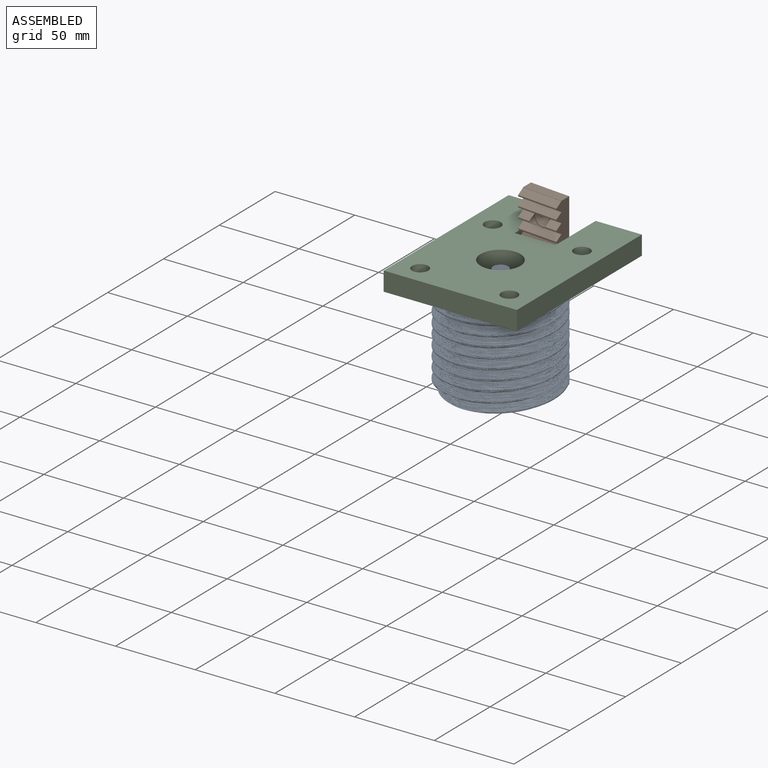
[diagram: assembled view]
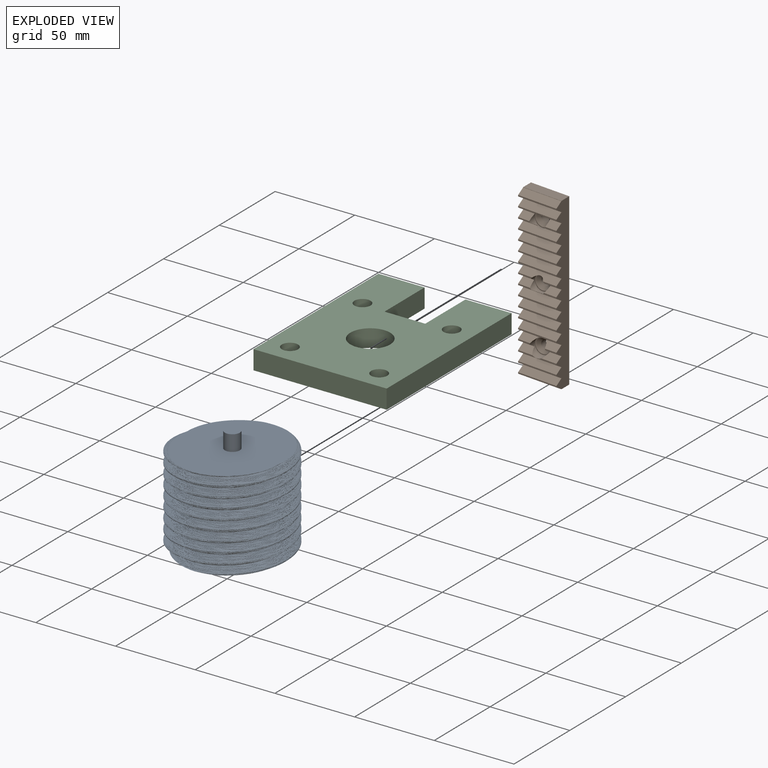
[diagram: exploded view]
GUIDED TOUR — FREECAD ASSEMBLY "block"

This assembly has 3 components, labeled P0..P2 below (a component is one placed body or linked part; the same part can appear more than once), held together by 0 modeled joints plus 2 derived contact edges. A joint is a constraint between two components; its type names the relative motion it leaves free:
  CONTACT — a derived adjacency edge — the two components touch in the source model (clearance under 2% of the assembly's diagonal); it is measured from the geometry, not a modeled constraint.
Axis/direction vectors are unit vectors and 'through' points are millimeter coordinates, both in the assembly's world frame.

MATES
  1. CONTACT "contact_0_1": P0 <-> P1, contact direction (0.000, 1.000, 0.000) through (-3.93, 79.12, 15.52) mm (derived from contact, not a modeled constraint)
  2. CONTACT "contact_1_2": P1 <-> P2, contact direction (0.000, -1.000, 0.000) through (-12.50, 77.12, 70.33) mm (derived from contact, not a modeled constraint)

ASSEMBLY ORDER
  1. P1 — the base component [order verified]
  2. P2 [order verified]
  3. P0 [order verified]
Order-tag legend:
  [order verified] — this step's position reverses a verified removal order: the component was checked to insert without passing through the ones already placed.

Of the 3 components, 3 carry a construction recipe — the FreeCAD feature program (sketches with constraints, then the solid features that consume them) that regenerates the part from scratch, quoted from this document or from the linked companion document it references; the rest are supplied as boundary geometry only. The tour below walks the components in assembly order: each is shown spotlighted twice — in the assembled view, then in the exploded view, where a leader line traces a displaced component back to its assembled socket (components that stay in place when exploded have no leader line; saturated green if recipe-attached, orange if geometry-only; every other component desaturated gray) — followed by its recipe or geometry summary and the mates that hold it.
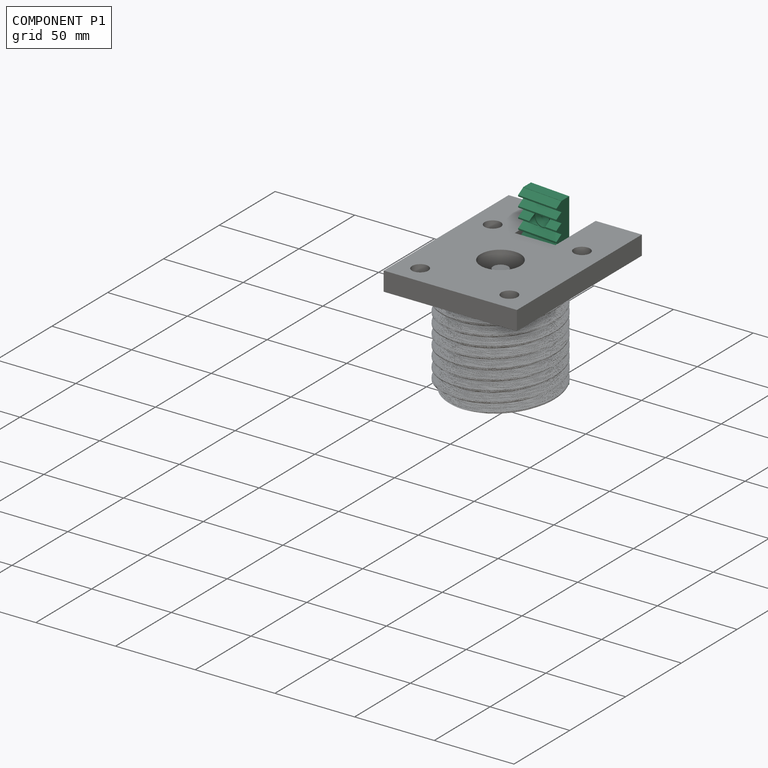
[diagram: component P1 — assembled]
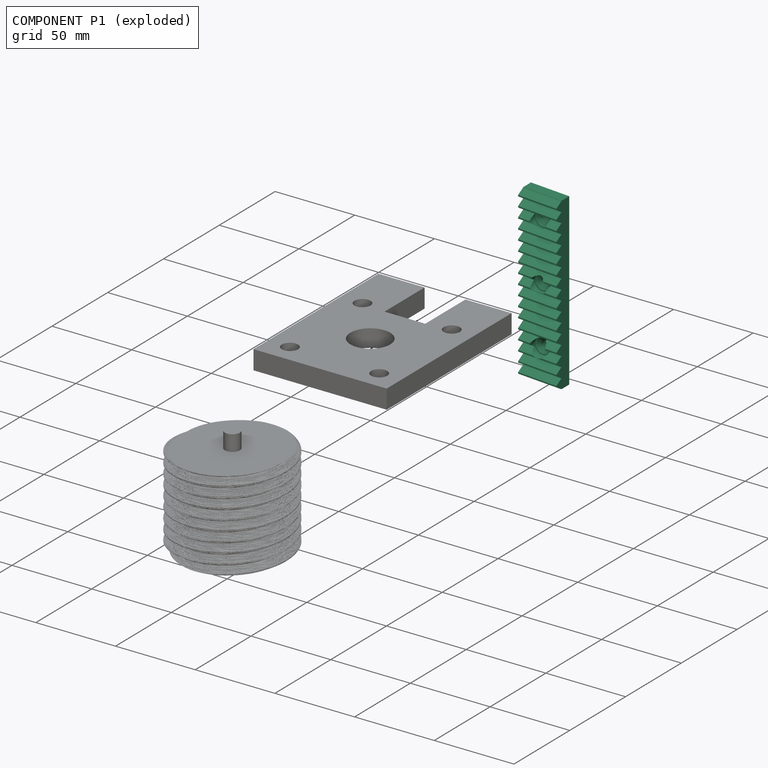
[diagram: component P1 — exploded]
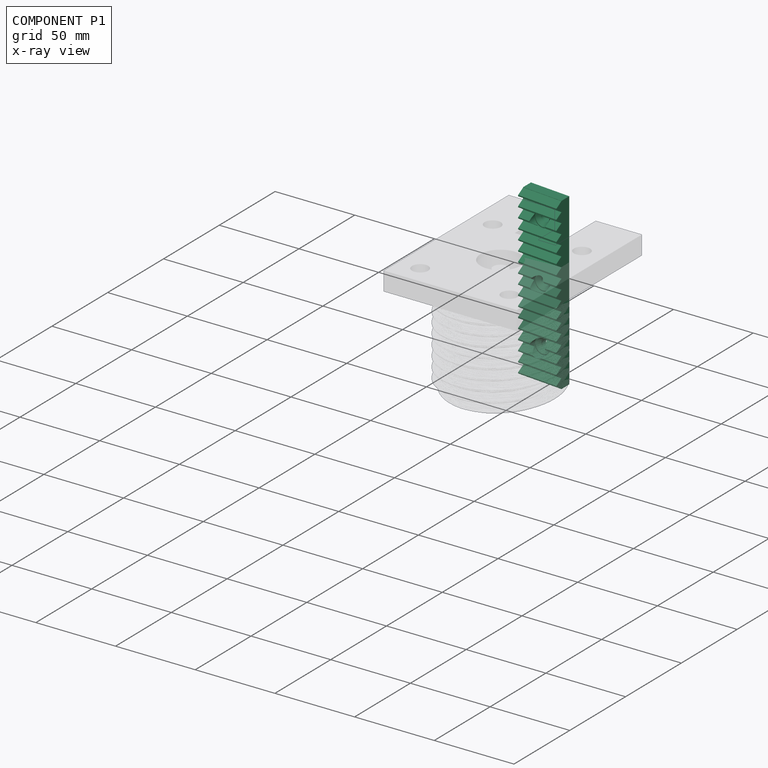
[diagram: component P1 — x-ray view]
COMPONENT P1 — same part as P0; its construction recipe is shown at P0.
Held by: resting contact with P0 (derived edge); resting contact with P2 (derived edge).
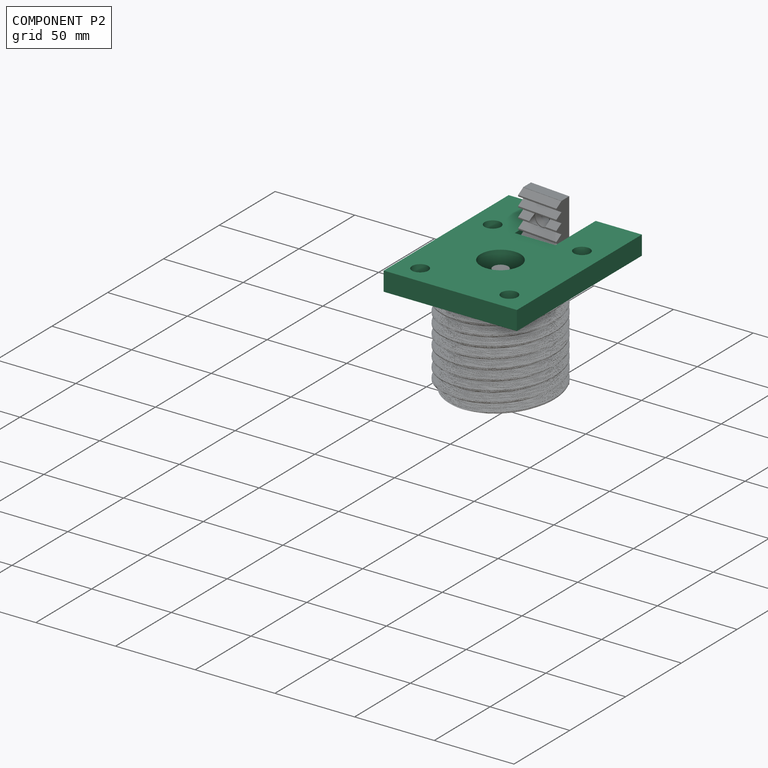
[diagram: component P2 — assembled]
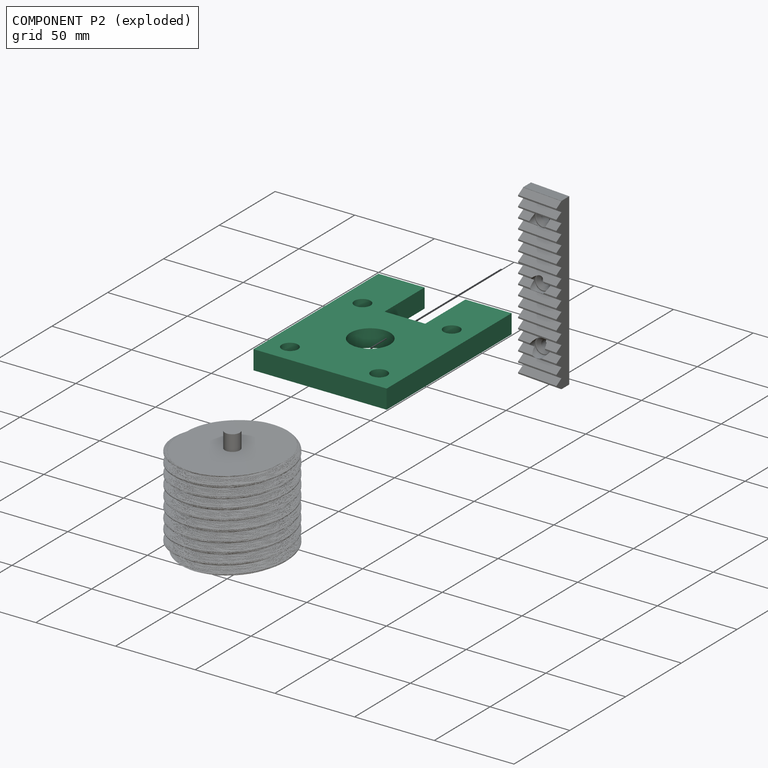
[diagram: component P2 — exploded]
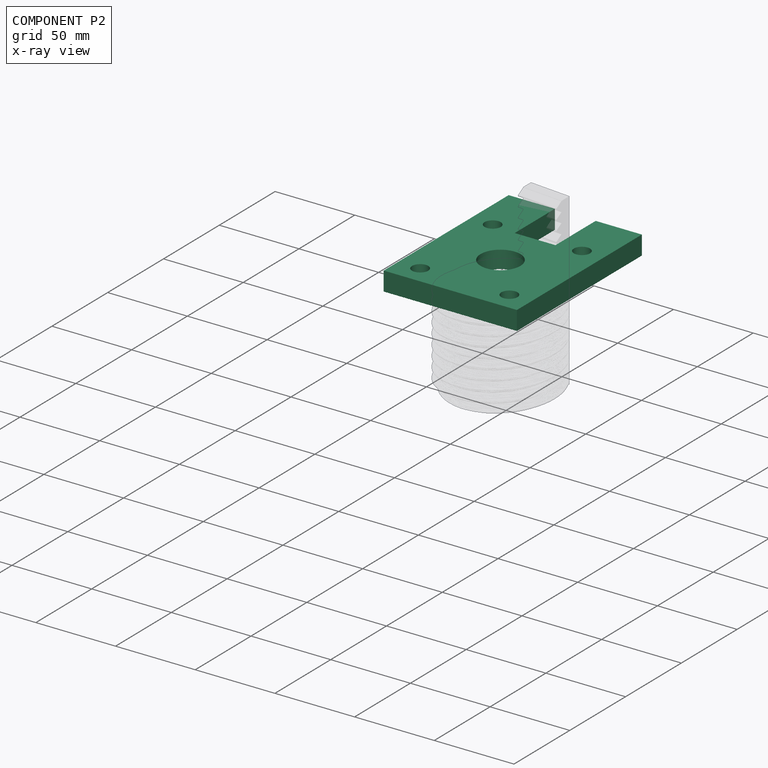
[diagram: component P2 — x-ray view]
COMPONENT P2 — same part as P0; its construction recipe is shown at P0.
Held by: resting contact with P1 (derived edge).
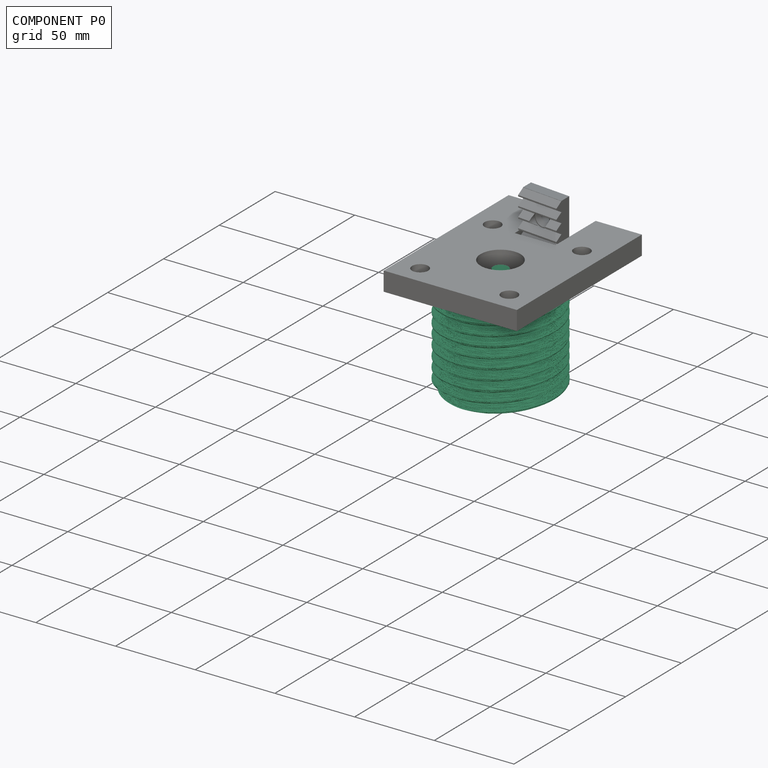
[diagram: component P0 — assembled]
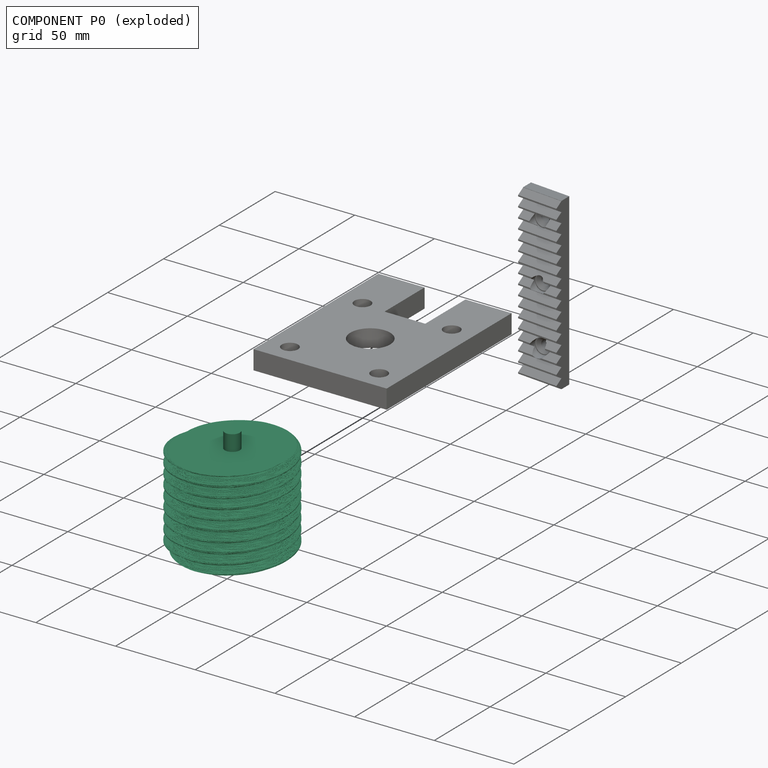
[diagram: component P0 — exploded]
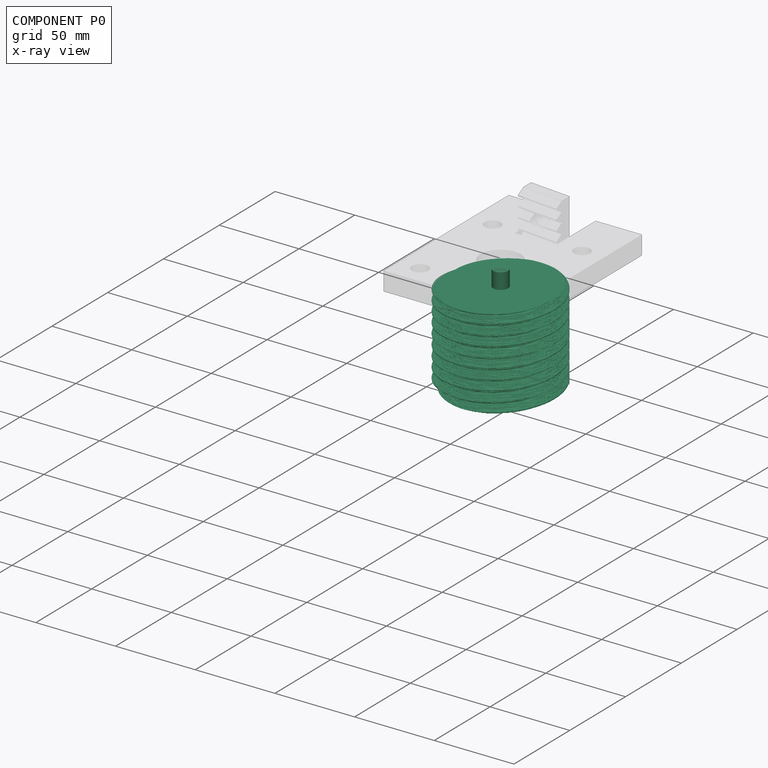
[diagram: component P0 — x-ray view]
COMPONENT P0 — recipe-attached ("worm", modeled in this document).
Held by: resting contact with P1 (derived edge).
Construction recipe (the document's own serialized feature program — sketch geometry with constraints, then the solid features built on it; lengths are millimeters unless a unit is written):

FEATURE [Sketcher::SketchObject] Sketch
  FullyConstrained = true
  MapMode = 5
  Support = -> [XY_Plane]
  sketch-geometry (21):
    g0: LineSegment StartX=0 StartY=0 StartZ=0 EndX=-41.9 EndY=0 EndZ=0
    g1: LineSegment StartX=-41.9 StartY=0 StartZ=0 EndX=-41.9 EndY=112 EndZ=0
    g2: LineSegment StartX=-10.8964 StartY=105.375 StartZ=0 EndX=-10.8964 EndY=106.7 EndZ=0
    g3: LineSegment StartX=-10.5214 StartY=107.075 StartZ=0 EndX=-6.89645 EndY=107.075 EndZ=0
    g4: LineSegment StartX=-5.39645 StartY=105.575 StartZ=0 EndX=-5.39645 EndY=99.375 EndZ=0
    g5: LineSegment StartX=-6.89645 StartY=97.875 StartZ=0 EndX=-10.5214 EndY=97.875 EndZ=0
    g6: LineSegment StartX=-10.8964 StartY=98.25 StartZ=0 EndX=-10.8964 EndY=99.575 EndZ=0
    g7: LineSegment StartX=-11.3232 StartY=99.7518 StartZ=0 EndX=-12.9 EndY=98.175 EndZ=0
    g8: ArcOfCircle CenterX=-10.5214 CenterY=106.7 CenterZ=0 NormalX=0 NormalY=0 NormalZ=1 AngleXU=0 Radius=0.375 StartAngle=1.5708 EndAngle=3.14159
    g9: ArcOfCircle CenterX=-6.89645 CenterY=105.575 CenterZ=0 NormalX=0 NormalY=0 NormalZ=1 AngleXU=0 Radius=1.5 StartAngle=4.6e-15 EndAngle=1.5708
    g10: ArcOfCircle CenterX=-6.89645 CenterY=99.375 CenterZ=0 NormalX=0 NormalY=0 NormalZ=1 AngleXU=0 Radius=1.5 StartAngle=4.71239 EndAngle=6.28319
    g11: ArcOfCircle CenterX=-10.5214 CenterY=98.25 CenterZ=0 NormalX=0 NormalY=0 NormalZ=1 AngleXU=0 Radius=0.375 StartAngle=3.14159 EndAngle=4.71239
    g12: LineSegment StartX=-41.9 StartY=112 StartZ=0 EndX=-12.9 EndY=112 EndZ=0
    g13: LineSegment StartX=-12.9 StartY=112 StartZ=0 EndX=-12.9 EndY=106.775 EndZ=0
    g14: LineSegment StartX=-12.9 StartY=106.775 StartZ=0 EndX=-11.3232 EndY=105.198 EndZ=0
    g15: LineSegment StartX=-12.9 StartY=98.175 StartZ=0 EndX=-12.9 EndY=92.95 EndZ=0
    g16: LineSegment StartX=-12.9 StartY=92.95 StartZ=0 EndX=-12.9 EndY=74.95 EndZ=0
    g17: ArcOfCircle CenterX=-11.1464 CenterY=105.375 CenterZ=0 NormalX=0 NormalY=0 NormalZ=1 AngleXU=0 Radius=0.25 StartAngle=3.92699 EndAngle=6.28319
    g18: ArcOfCircle CenterX=-11.1464 CenterY=99.575 CenterZ=0 NormalX=0 NormalY=0 NormalZ=1 AngleXU=0 Radius=0.25 StartAngle=1.11e-14 EndAngle=2.35619
    g19: LineSegment StartX=-12.9 StartY=74.95 StartZ=0 EndX=0 EndY=74.95 EndZ=0
    g20: LineSegment StartX=0 StartY=0 StartZ=0 EndX=0 EndY=74.95 EndZ=0
  constraints (56):
    c: Coincident(g0,g-1)
    c: PointOnObject(g0,g-1)
    c: Coincident(g1,g0)
    c: Vertical(g1)
    c: Vertical(g2)
    c: Horizontal(g3)
    c: Vertical(g4)
    c: Horizontal(g5)
    c: Vertical(g6)
    c: Tangent(g2,g8) = 1.5708
    c: Tangent(g3,g8) = 1.5708
    c: Tangent(g3,g9) = 1.5708
    c: Tangent(g4,g9) = 1.5708
    c: Tangent(g4,g10) = 1.5708
    c: Tangent(g5,g10) = 1.5708
    c: Tangent(g5,g11) = 1.5708
    c: Tangent(g6,g11) = 1.5708
    c: Diameter(g10) = 3
    c: Diameter(g11) = 0.75
    c: Equal(g11,g8)
    c: Equal(g9,g10)
    c: DistanceY(g5,g3) = 9.2
    c: Equal(g6,g2)
    c: Coincident(g12,g1)
    c: Horizontal(g12)
    c: Coincident(g13,g12)
    c: Vertical(g13)
    c: Coincident(g14,g13)
    c: Coincident(g15,g7)
    c: Vertical(g15)
    c: Coincident(g16,g15)
    c: Vertical(g16)
    c: DistanceY(g15,g12) = 19.05
    c: Equal(g15,g13)
    c: Vertical(g7,g13)
    c: Tangent(g2,g17) = -1.5708
    c: Tangent(g14,g17) = -1.5708
    c: Tangent(g6,g18) = -1.5708
    c: Tangent(g7,g18) = -1.5708
    c: Vertical(g18,g17)
    c: Diameter(g17) = 0.5
    c: Equal(g18,g17)
    c: DistanceY(g18,g17) = 5.8
    c: DistanceY(g7,g13) = 8.6
    c: Equal(g14,g7)
    c: DistanceX(g2,g4) = 5.5
    c: DistanceX(g12,g12) = 29
    c: DistanceY(g1,g1) = 112
    c: DistanceX(g12,g-1) = 12.9
    c: Coincident(g19,g16)
    c: PointOnObject(g19,g-2)
    c: Horizontal(g19)
    c: Coincident(g20,g0)
    c: Coincident(g20,g19)
    c: DistanceY(g16,g16) = 18
    c: Angle(g2,g14) = 0.785398
FEATURE [PartDesign::Pad] Pad
  Direction = (0,0,1)
  Length = 70
  Length2 = 10
  Profile = -> Sketch
  ReferenceAxis = -> Sketch [N_Axis]
  Type = 0
FEATURE [Sketcher::SketchObject] Sketch001
  FullyConstrained = true
  MapMode = 5
  Placement = pos=(0,0,70) rot=(0,0,1;0rad)
  Support = -> [Pad]
  expr: Constraints[1] = Spreadsheet.motor_distance
  sketch-geometry (1):
    g0: Circle CenterX=0 CenterY=45 CenterZ=0 NormalX=0 NormalY=0 NormalZ=1 AngleXU=0 Radius=37.5
  constraints (3):
    c: PointOnObject(g0,g-2)
    c: DistanceY(g-1,g0) = 45
    c: Diameter(g0) = 75
FEATURE [PartDesign::Pocket] Pocket
  BaseFeature = -> Pad
  Direction = (0,0,-1)
  Length = 0
  Length2 = 5
  Offset = -10
  Profile = -> Sketch001
  ReferenceAxis = -> Sketch001 [N_Axis]
  Type = 3
  UpToFace = -> Pad [Face22]
FEATURE [Sketcher::SketchObject] Sketch002
  ExternalGeometry = -> [Pocket]
  FullyConstrained = false
  MapMode = 5
  Placement = pos=(0,0,70) rot=(0,0,1;0rad)
  Support = -> [Pocket]
  expr: Constraints[26] = Spreadsheet.motor_distance
  sketch-geometry (38):
    g0: Circle CenterX=-25.4 CenterY=45 CenterZ=0 NormalX=0 NormalY=0 NormalZ=1 AngleXU=0 Radius=2.54
    g1: LineSegment StartX=-30.826 StartY=109 StartZ=0 EndX=-28.54 EndY=109 EndZ=0
    g2: LineSegment StartX=-21.174 StartY=109 StartZ=0 EndX=-21.174 EndY=103 EndZ=0
    g3: LineSegment StartX=-21.174 StartY=103 StartZ=0 EndX=-30.826 EndY=103 EndZ=0
    g4: LineSegment StartX=-30.826 StartY=103 StartZ=0 EndX=-30.826 EndY=109 EndZ=0
    g5: LineSegment StartX=-38.9 StartY=91.426 StartZ=0 EndX=-32.9 EndY=91.426 EndZ=0
    g6: LineSegment StartX=-32.9 StartY=91.426 StartZ=0 EndX=-32.9 EndY=81.774 EndZ=0
    g7: LineSegment StartX=-32.9 StartY=81.774 StartZ=0 EndX=-38.9 EndY=81.774 EndZ=0
    g8: LineSegment StartX=-38.9 StartY=81.774 StartZ=0 EndX=-38.9 EndY=84.06 EndZ=0
    g9: LineSegment StartX=-38.9 StartY=23.826 StartZ=0 EndX=-32.9 EndY=23.826 EndZ=0
    g10: LineSegment StartX=-32.9 StartY=23.826 StartZ=0 EndX=-32.9 EndY=14.174 EndZ=0
    g11: LineSegment StartX=-32.9 StartY=14.174 StartZ=0 EndX=-38.9 EndY=14.174 EndZ=0
    g12: LineSegment StartX=-38.9 StartY=14.174 StartZ=0 EndX=-38.9 EndY=16.46 EndZ=0
    g13: LineSegment StartX=-23.46 StartY=109 StartZ=0 EndX=-23.46 EndY=117.224 EndZ=0
    g14: LineSegment StartX=-23.46 StartY=117.224 StartZ=0 EndX=-28.54 EndY=117.224 EndZ=0
    g15: LineSegment StartX=-28.54 StartY=117.224 StartZ=0 EndX=-28.54 EndY=109 EndZ=0
    g16: LineSegment StartX=-23.46 StartY=109 StartZ=0 EndX=-21.174 EndY=109 EndZ=0
    g17: GeomPoint X=-26 Y=117.224 Z=0
    g18: LineSegment StartX=-38.9 StartY=89.14 StartZ=0 EndX=-44.971 EndY=89.14 EndZ=0
    g19: LineSegment StartX=-44.971 StartY=89.14 StartZ=0 EndX=-44.971 EndY=84.06 EndZ=0
    g20: LineSegment StartX=-44.971 StartY=84.06 StartZ=0 EndX=-38.9 EndY=84.06 EndZ=0
    g21: LineSegment StartX=-38.9 StartY=89.14 StartZ=0 EndX=-38.9 EndY=91.426 EndZ=0
    g22: GeomPoint X=-44.971 Y=86.6 Z=0
    g23: Circle CenterX=0 CenterY=45 CenterZ=0 NormalX=0 NormalY=0 NormalZ=1 AngleXU=0 Radius=10.5
    g24: LineSegment StartX=-38.9 StartY=16.46 StartZ=0 EndX=-45.3888 EndY=16.46 EndZ=0
    g25: LineSegment StartX=-45.3888 StartY=16.46 StartZ=0 EndX=-45.3888 EndY=21.54 EndZ=0
    g26: LineSegment StartX=-45.3888 StartY=21.54 StartZ=0 EndX=-38.9 EndY=21.54 EndZ=0
    g27: LineSegment StartX=-38.9 StartY=21.54 StartZ=0 EndX=-38.9 EndY=23.826 EndZ=0
    g28: GeomPoint X=-45.3888 Y=19 Z=0
    g29: LineSegment StartX=-30.826 StartY=3 StartZ=0 EndX=-28.54 EndY=3 EndZ=0
    g30: LineSegment StartX=-21.174 StartY=3 StartZ=0 EndX=-21.174 EndY=9 EndZ=0
    g31: LineSegment StartX=-21.174 StartY=9 StartZ=0 EndX=-30.826 EndY=9 EndZ=0
    g32: LineSegment StartX=-30.826 StartY=9 StartZ=0 EndX=-30.826 EndY=3 EndZ=0
    g33: LineSegment StartX=-28.54 StartY=3 StartZ=0 EndX=-28.54 EndY=-1.73673 EndZ=0
    g34: LineSegment StartX=-28.54 StartY=-1.73673 StartZ=0 EndX=-23.46 EndY=-1.73673 EndZ=0
    g35: LineSegment StartX=-23.46 StartY=-1.73673 StartZ=0 EndX=-23.46 EndY=3 EndZ=0
    g36: LineSegment StartX=-23.46 StartY=3 StartZ=0 EndX=-21.174 EndY=3 EndZ=0
    g37: GeomPoint X=-26 Y=-1.73673 Z=0
  constraints (102):
    c: Coincident(g16,g2)
    c: Coincident(g2,g3)
    c: Coincident(g3,g4)
    c: Coincident(g4,g1)
    c: Horizontal(g1)
    c: Horizontal(g3)
    c: Vertical(g2)
    c: Vertical(g4)
    c: Coincident(g5,g6)
    c: Coincident(g6,g7)
    c: Coincident(g7,g8)
    c: Coincident(g21,g5)
    c: Horizontal(g5)
    c: Horizontal(g7)
    c: Vertical(g6)
    c: Vertical(g8)
    c: Coincident(g9,g10)
    c: Coincident(g10,g11)
    c: Coincident(g11,g12)
    c: Coincident(g27,g9)
    c: Horizontal(g9)
    c: Horizontal(g11)
    c: Vertical(g10)
    c: Vertical(g12)
    c: Diameter(g0) = 5.08
    c: DistanceX(g0,g-1) = 25.4
    c: DistanceY(g-1,g0) = 45
    c: Coincident(g13,g14)
    c: Coincident(g14,g15)
    c: Horizontal(g14)
    c: Vertical(g13)
    c: Vertical(g15)
    c: Coincident(g1,g15)
    c: Coincident(g13,g16)
    c: DistanceY(g1,g-4) = 3
    c: Horizontal(g1,g13)
    c: Horizontal(g16)
    c: DistanceX(g14,g14) = 5.08
    c: DistanceX(g3,g3) = 9.652
    c: Equal(g16,g1)
    c: Symmetric(g14,g13,g17)
    c: DistanceX(g17,g-1) = 26
    c: Horizontal(g18)
    c: Coincident(g19,g18)
    c: Vertical(g19)
    c: Coincident(g20,g19)
    c: Horizontal(g20)
    c: Coincident(g8,g20)
    c: Coincident(g21,g18)
    c: DistanceY(g6,g6) = 9.652
    c: Equal(g21,g8)
    c: DistanceY(g19,g19) = 5.08
    c: DistanceY(g4,g4) = 6
    c: DistanceX(g5,g5) = 6
    c: Vertical(g21)
    c: Vertical(g18,g8)
    c: Symmetric(g19,g18,g22)
    c: DistanceY(g22,g-4) = 25.4
    c: DistanceX(g-4,g5) = 3
    c: PointOnObject(g23,g-2)
    c: Horizontal(g23,g0)
    c: Diameter(g23) = 21
    c: Horizontal(g24)
    c: Coincident(g25,g24)
    c: Vertical(g25)
    c: Coincident(g26,g25)
    c: Horizontal(g26)
    c: DistanceX(g9,g9) = 6
    c: DistanceY(g10,g10) = 9.652
    c: Vertical(g27)
    c: DistanceX(g-4,g9) = 3
    c: Symmetric(g25,g24,g28)
    c: DistanceY(g-5,g28) = 19
    c: Coincident(g24,g12)
    c: Equal(g27,g12)
    c: DistanceY(g25,g25) = 5.08
    c: Coincident(g26,g27)
    c: Vertical(g26,g12)
    c: Coincident(g36,g30)
    c: Coincident(g30,g31)
    c: Coincident(g31,g32)
    c: Coincident(g32,g29)
    c: Horizontal(g29)
    c: Horizontal(g31)
    c: Vertical(g30)
    c: Vertical(g32)
    c: DistanceX(g31,g31) = 9.652
    c: DistanceY(g32,g32) = 6
    c: Vertical(g33)
    c: Coincident(g34,g33)
    c: Horizontal(g34)
    c: Coincident(g35,g34)
    c: Vertical(g35)
    c: Coincident(g29,g33)
    c: Coincident(g36,g35)
    c: Equal(g29,g36)
    c: Horizontal(g36)
    c: Horizontal(g29,g35)
    c: DistanceY(g-5,g29) = 3
    c: Symmetric(g33,g34,g37)
    c: DistanceX(g34,g34) = 5.08
    c: DistanceX(g37,g-5) = 26
FEATURE [PartDesign::Pocket] Pocket001
  BaseFeature = -> Pocket
  Direction = (0,0,-1)
  Length = 5
  Length2 = 5
  Profile = -> Sketch002
  ReferenceAxis = -> Sketch002 [N_Axis]
  Type = 1
FEATURE [PartDesign::Mirrored] Mirrored
  BaseFeature = -> Pocket001
  MirrorPlane = -> Sketch [V_Axis]
  Originals = -> [Pad,Pocket,Pocket001]
FEATURE [Sketcher::SketchObject] Sketch003
  FullyConstrained = true
  MapMode = 5
  Placement = pos=(0,0,10) rot=(0,0,1;0rad)
  Support = -> [Mirrored]
  expr: Constraints[5] = Spreadsheet.motor_distance
  sketch-geometry (2):
    g0: Circle CenterX=-25.4 CenterY=45 CenterZ=0 NormalX=0 NormalY=0 NormalZ=1 AngleXU=0 Radius=5.08
    g1: Circle CenterX=25.4 CenterY=45 CenterZ=0 NormalX=0 NormalY=0 NormalZ=1 AngleXU=0 Radius=5.08
  constraints (6):
    c: DistanceX(g0,g1) = 50.8
    c: DistanceX(g0,g-1) = 25.4
    c: Equal(g0,g1)
    c: Diameter(g0) = 10.16
    c: Horizontal(g1,g0)
    c: DistanceY(g-1,g0) = 45
FEATURE [PartDesign::Pocket] Pocket002
  BaseFeature = -> Mirrored
  Direction = (0,0,-1)
  Length = 3.5
  Length2 = 5
  Profile = -> Sketch003
  ReferenceAxis = -> Sketch003 [N_Axis]
  Type = 0
FEATURE [Sketcher::SketchObject] Sketch004
  FullyConstrained = true
  MapMode = 5
  Placement = pos=(0,0,70) rot=(0,0,1;0rad)
  Support = -> [Pocket002]
  sketch-geometry (4):
    g0: Circle CenterX=-28 CenterY=78 CenterZ=0 NormalX=0 NormalY=0 NormalZ=1 AngleXU=0 Radius=2.286
    g1: Circle CenterX=28 CenterY=78 CenterZ=0 NormalX=0 NormalY=0 NormalZ=1 AngleXU=0 Radius=2.286
    g2: Circle CenterX=28 CenterY=13 CenterZ=0 NormalX=0 NormalY=0 NormalZ=1 AngleXU=0 Radius=2.286
    g3: Circle CenterX=-28 CenterY=13 CenterZ=0 NormalX=0 NormalY=0 NormalZ=1 AngleXU=0 Radius=2.286
  constraints (12):
    c: DistanceX(g3,g-1) = 28
    c: Equal(g0,g1)
    c: Equal(g1,g2)
    c: Equal(g2,g3)
    c: Diameter(g3) = 4.572
    c: Vertical(g3,g0)
    c: Vertical(g2,g1)
    c: Horizontal(g3,g2)
    c: Horizontal(g0,g1)
    c: DistanceY(g3,g0) = 65
    c: DistanceX(g-1,g2) = 28
    c: DistanceY(g-1,g3) = 13
FEATURE [PartDesign::Pocket] Pocket003
  BaseFeature = -> Pocket002
  Direction = (0,0,-1)
  Length = 10
  Length2 = 5
  Profile = -> Sketch004
  ReferenceAxis = -> Sketch004 [N_Axis]
  Type = 0
FEATURE [PartDesign::Body] Body
  Group = -> [Sketch,Pad,Sketch001,Pocket,Sketch002,Pocket001,Mirrored,Sketch003,Pocket002,Sketch004,Pocket003]
  Origin = -> Origin
  Tip = -> Pocket003
PROVENANCE & LICENSES
Assembly and component geometry: a FreeCAD (.FCStd) document from a public repository crawl; components, placements and joints were extracted with FreeCAD and each solid tessellated.
Construction recipes: the document's own serialized feature recipes (and, for linked parts, the recipes of companion documents from the same project).
License: mit.
Joints: native FreeCAD joints and A2plus constraints are mapped to standard mate types; edges marked 'derived from contact' connect touching components and are measured from the geometry, not modeled.
Verification: 3 of this assembly's 3 components carry a construction recipe (3 from this document itself); the rest are geometry-only. Every component's tessellation passed the extraction mesh gates (mesh-volume checksum against the B-rep where available, bounding-box inflation <= 2%).
Renders: orthographic iso camera (az 35 / el 25); the floor grid conveys scale (grid pitch printed in each image; no ruler). In the exploded view each component is displaced by its stored offset vector: the offsets alone carry the explosion direction (mate normal/axis signs are not orientation cues and do not encode it), and separation distances are assigned per mate-chain, not proportionally to assembly-order depth.
